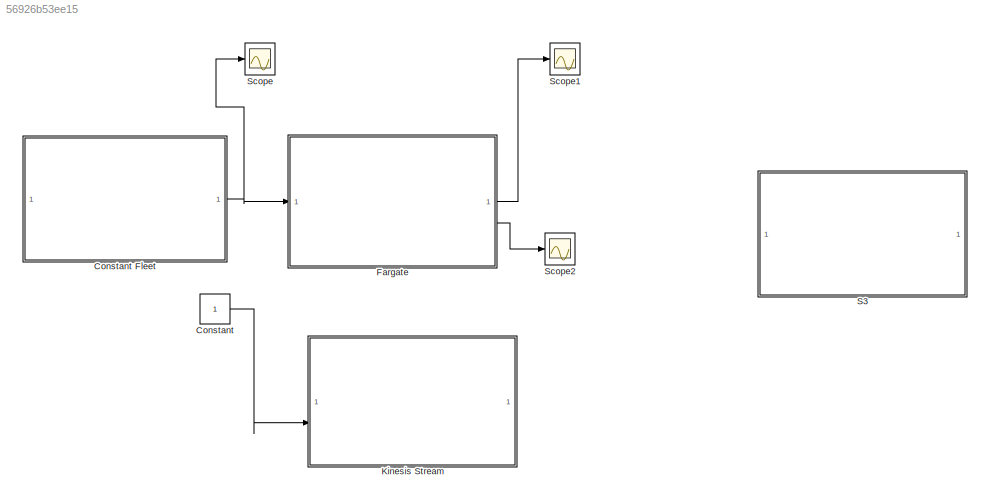
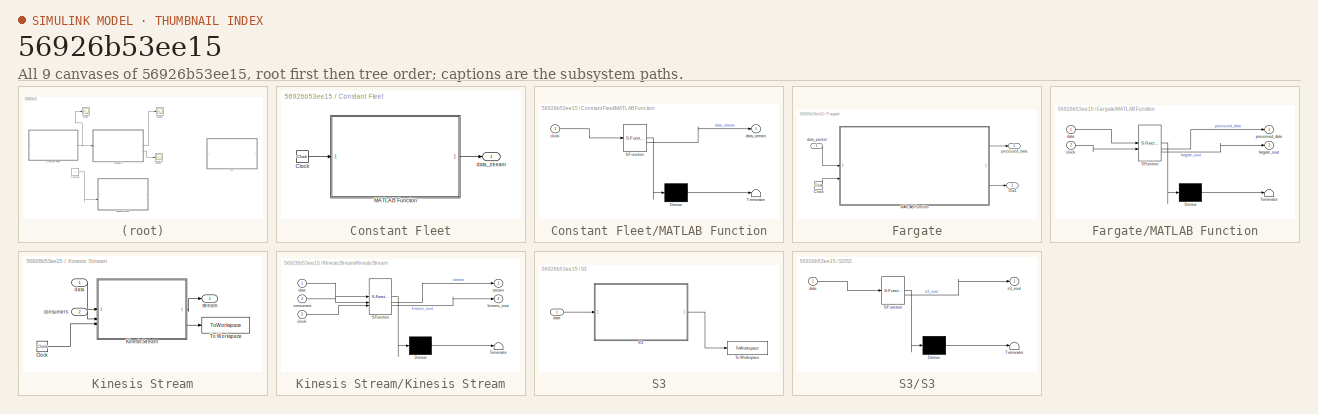
[diagram: thumbnail index - all 9 canvases of the model, root first then tree order]
MODEL slx_56926b53ee15
KIND model
CONFIG AbsTol = auto
CONFIG EnableMultiTasking = off
CONFIG FixedStep = auto
CONFIG MaxStep = auto
CONFIG MinStep = auto
CONFIG RelTol = 1e-3
CONFIG SampleTimeConstraint = Unconstrained
CONFIG SolverName = VariableStepAuto
CONFIG StartTime = 0.0
CONFIG StopTime = 20
BLOCK [Constant] Constant
  Commented = on
BLOCK [SubSystem] Constant Fleet
  AncestorBlock = VACLib/Vehicle Components/Constant Fleet
  LibrarySourceBlock = VACLib/Vehicle Components/Constant Fleet
BLOCK [Clock] Constant Fleet/Clock
BLOCK [SubSystem] Constant Fleet/MATLAB Function
  ErrorFcn = Stateflow.Translate.translate
  LibrarySourceBlock = simulink/User-Defined\nFunctions/MATLAB Function
  PermitHierarchicalResolution = ExplicitOnly
  SFBlockType = MATLAB Function
  TreatAsAtomicUnit = on
BLOCK [Demux] Constant Fleet/MATLAB Function/ Demux 
  Outputs = 1
BLOCK [S-Function] Constant Fleet/MATLAB Function/ SFunction 
  EnableBusSupport = on
  FunctionName = sf_sfun
  PortCounts = [1 2]
  SFcnIsStateOwnerBlock = off
  SFunctionDeploymentMode = off
  Tag = Stateflow S-Function 2
BLOCK [Terminator] Constant Fleet/MATLAB Function/ Terminator 
BLOCK [Inport] Constant Fleet/MATLAB Function/clock
BLOCK [Outport] Constant Fleet/MATLAB Function/data_stream
BLOCK [Outport] Constant Fleet/data_stream
BLOCK [SubSystem] Fargate
  AncestorBlock = VACLib/AWS Components/Fargate
  LibrarySourceBlock = VACLib/AWS Components/Fargate
BLOCK [Clock] Fargate/Clock
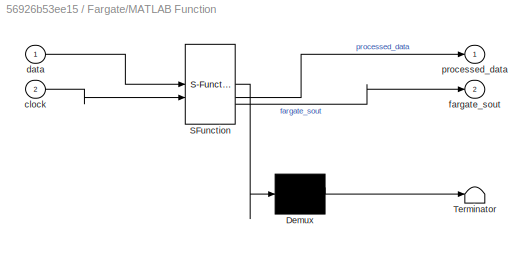
BLOCK [SubSystem] Fargate/MATLAB Function
  ErrorFcn = Stateflow.Translate.translate
  LibrarySourceBlock = simulink/User-Defined\nFunctions/MATLAB Function
  PermitHierarchicalResolution = ExplicitOnly
  SFBlockType = MATLAB Function
  TreatAsAtomicUnit = on
BLOCK [Demux] Fargate/MATLAB Function/ Demux 
  Outputs = 1
BLOCK [S-Function] Fargate/MATLAB Function/ SFunction 
  EnableBusSupport = on
  FunctionName = sf_sfun
  PortCounts = [2 3]
  SFcnIsStateOwnerBlock = off
  SFunctionDeploymentMode = off
  Tag = Stateflow S-Function 3
BLOCK [Terminator] Fargate/MATLAB Function/ Terminator 
BLOCK [Inport] Fargate/MATLAB Function/clock
  Port = 2
BLOCK [Inport] Fargate/MATLAB Function/data
BLOCK [Outport] Fargate/MATLAB Function/fargate_sout
  Port = 2
BLOCK [Outport] Fargate/MATLAB Function/processed_data
BLOCK [Outport] Fargate/Out1
  Port = 2
BLOCK [Inport] Fargate/data_packet
BLOCK [Outport] Fargate/processed_data
BLOCK [SubSystem] Kinesis Stream
  AncestorBlock = VACLib/AWS Components/Kinesis Stream
  Commented = on
  LibrarySourceBlock = VACLib/AWS Components/Kinesis Stream
  ShowPortLabels = none
BLOCK [Clock] Kinesis Stream/Clock
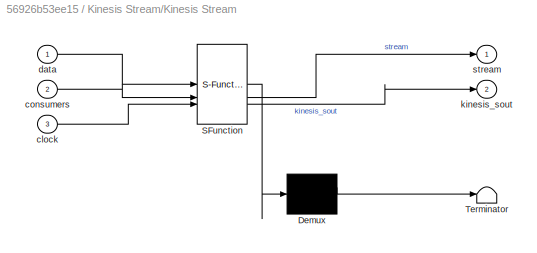
BLOCK [SubSystem] Kinesis Stream/Kinesis Stream
  ErrorFcn = Stateflow.Translate.translate
  LibrarySourceBlock = simulink/User-Defined\nFunctions/MATLAB Function
  PermitHierarchicalResolution = ExplicitOnly
  SFBlockType = MATLAB Function
  TreatAsAtomicUnit = on
BLOCK [Demux] Kinesis Stream/Kinesis Stream/ Demux 
  Outputs = 1
BLOCK [S-Function] Kinesis Stream/Kinesis Stream/ SFunction 
  EnableBusSupport = on
  FunctionName = sf_sfun
  Parameters = kinesis_efos,kinesis_ondemand,kinesis_peak,kinesis_records
  PortCounts = [3 3]
  SFcnIsStateOwnerBlock = off
  SFunctionDeploymentMode = off
  Tag = Stateflow S-Function 18
BLOCK [Terminator] Kinesis Stream/Kinesis Stream/ Terminator 
BLOCK [Inport] Kinesis Stream/Kinesis Stream/clock
  Port = 3
BLOCK [Inport] Kinesis Stream/Kinesis Stream/consumers
  Port = 2
BLOCK [Inport] Kinesis Stream/Kinesis Stream/data
BLOCK [Outport] Kinesis Stream/Kinesis Stream/kinesis_sout
  Port = 2
BLOCK [Outport] Kinesis Stream/Kinesis Stream/stream
BLOCK [ToWorkspace] Kinesis Stream/To Workspace
  FixptAsFi = on
  MaxDataPoints = inf
  SampleTime = -1
  SaveFormat = Timeseries
  VariableName = kinesis_sout
BLOCK [Inport] Kinesis Stream/consumers
  Port = 2
BLOCK [Inport] Kinesis Stream/data
BLOCK [Outport] Kinesis Stream/stream
BLOCK [SubSystem] S3
  AncestorBlock = VACLib/AWS Components/S3
  Commented = on
  LibrarySourceBlock = VACLib/AWS Components/S3
BLOCK [SubSystem] S3/S3
  ErrorFcn = Stateflow.Translate.translate
  LibrarySourceBlock = simulink/User-Defined\nFunctions/MATLAB Function
  PermitHierarchicalResolution = ExplicitOnly
  SFBlockType = MATLAB Function
  TreatAsAtomicUnit = on
BLOCK [Demux] S3/S3/ Demux 
  Outputs = 1
BLOCK [S-Function] S3/S3/ SFunction 
  EnableBusSupport = on
  FunctionName = sf_sfun
  PortCounts = [1 2]
  SFcnIsStateOwnerBlock = off
  SFunctionDeploymentMode = off
  Tag = Stateflow S-Function 14
BLOCK [Terminator] S3/S3/ Terminator 
BLOCK [Inport] S3/S3/data
BLOCK [Outport] S3/S3/s3_sout
BLOCK [ToWorkspace] S3/To Workspace
  FixptAsFi = on
  MaxDataPoints = inf
  SampleTime = -1
  SaveFormat = Timeseries
  VariableName = s3_sout
BLOCK [Inport] S3/data
BLOCK [Scope] Scope
  Floating = off
  NumInputPorts = 1
  ScopeSpecificationString = Simulink.scopes.TimeScopeBlockCfg('CurrentConfiguration', extmgr.ConfigurationSet(extmgr.Configuration('Core','General UI',true),extmgr.Configuration('Core','Source UI',true),extmgr.Configuration('Sources','WiredSimulink',true),extmgr.Configuration('Visuals','Time Domain',true,'SerializedDisplays',{struct('MinYLimReal','-1250.00000','MaxYLimReal','11250.00000','YLabelReal','','MinYLimMag','  0.000...<+1419ch>
BLOCK [Scope] Scope1
  Floating = off
  NumInputPorts = 1
  ScopeSpecificationString = Simulink.scopes.TimeScopeBlockCfg('CurrentConfiguration', extmgr.ConfigurationSet(extmgr.Configuration('Core','General UI',true),extmgr.Configuration('Core','Source UI',true),extmgr.Configuration('Sources','WiredSimulink',true,'DataLoggingVariableName','ScopeData1'),extmgr.Configuration('Visuals','Time Domain',true,'SerializedDisplays',{struct('MinYLimReal','-1250.00000','MaxYLimReal','11250.00000...<+1521ch>
BLOCK [Scope] Scope2
  Floating = off
  NumInputPorts = 1
  ScopeSpecificationString = Simulink.scopes.TimeScopeBlockCfg('CurrentConfiguration', extmgr.ConfigurationSet(extmgr.Configuration('Core','General UI',true),extmgr.Configuration('Core','Source UI',true),extmgr.Configuration('Sources','WiredSimulink',true,'DataLoggingVariableName','ScopeData2'),extmgr.Configuration('Visuals','Time Domain',true,'SerializedDisplays',{struct('MinYLimReal','-0.00009','MaxYLimReal','0.00084','YLab...<+1875ch>
NET Constant Fleet:1 -> Fargate:1, Scope:1
LINE Constant:1 -> Kinesis Stream:2
LINE Fargate:1 -> Scope1:1
LINE Fargate:2 -> Scope2:1
note: NET lines group one-source signal fan-out (src -> all destinations, sorted); 1:1 wires keep LINE
CHART Constant Fleet/MATLAB Function states=1 transitions=1
  STATE_LABEL 'eML_blk_kernel()'
  STATE_LABEL 'SCRIPT:\nfunction data_stream  = fcn(clock)\n\npersistent out;\npersistent last_tick;\npersistent data_to_send;\n\nmessage_size = 1;\ncar_cache = 2;\nfleet_size = 1000;\nsimulation_time = 10;\n\nif isempty(out)\n    out = 0;\n    data_to_send = (message_size*fleet_size*simulation_time);\n    last_tick = 0;\nend\n\ntick = clock;\npassed_time = tick-last_tick;\nlast_tick = tick;\n\nsend_this_tick = (data_to_send/simulati...<+268ch>'
CHART Fargate/MATLAB Function states=1 transitions=1
  STATE_LABEL 'eML_blk_kernel()'
  STATE_LABEL 'SCRIPT:\nfunction [processed_data,fargate_sout] = fargate(data, clock)\n\npersistent computed_data;\npersistent received_data;\npersistent elapsed_time;\npersistent active_tasks;\npersistent remaining_comptasks;\npersistent accumulated_latency;\npersistent cost;\npersistent memory;\n\nfargate_vcpus = 4;\nfargate_memorylevel = 3;\n\nif isempty(computed_data)\n    computed_data = 0;\n    received_data = 0;\n    elaps...<+1358ch>'
CHART S3/S3 states=1 transitions=1
  STATE_LABEL 'eML_blk_kernel()'
  STATE_LABEL 'SCRIPT:\nfunction s3_sout = S3(data)\n\n% Keeps count of amount of data buckets (MB)\npersistent in_storage;\n% Overall cost for usage\npersistent s3_cost;\n\nif isempty(in_storage)\n    in_storage = 0;\n    s3_cost = 0;\nend\n\n% Received data (Might be zero if read in between pulses)\n% data_packets = (size_sent_in_total, size_of_each_file)\nnew_data = max(0,data(1) - in_storage);\nin_storage = in_storage + new...<+274ch>'
CHART Kinesis Stream/Kinesis Stream states=1 transitions=1
  STATE_LABEL 'eML_blk_kernel()'
  STATE_LABEL 'SCRIPT:\nfunction [stream, kinesis_sout] = kinesis(data, consumers, clock, kinesis_ondemand, kinesis_efos, kinesis_records, kinesis_peak)\n\npersistent received_data;\npersistent accepted_data;\npersistent streamed_data;\npersistent time_passed;\npersistent last_received;\npersistent running_time;\npersistent peak_buffer;\npersistent peak_records;\n\nif isempty(received_data)\n    received_data = 0;\n    accept...<+2737ch>'
CHART  states=0 transitions=0
CHART  states=0 transitions=0
CHART  states=0 transitions=0
CHART  states=0 transitions=0
